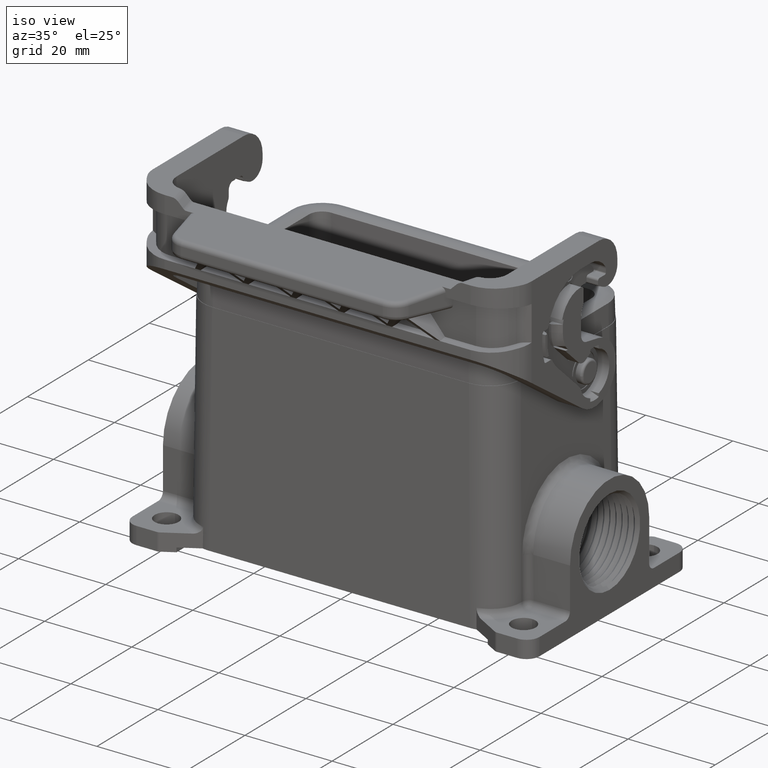
[diagram: clean part render]
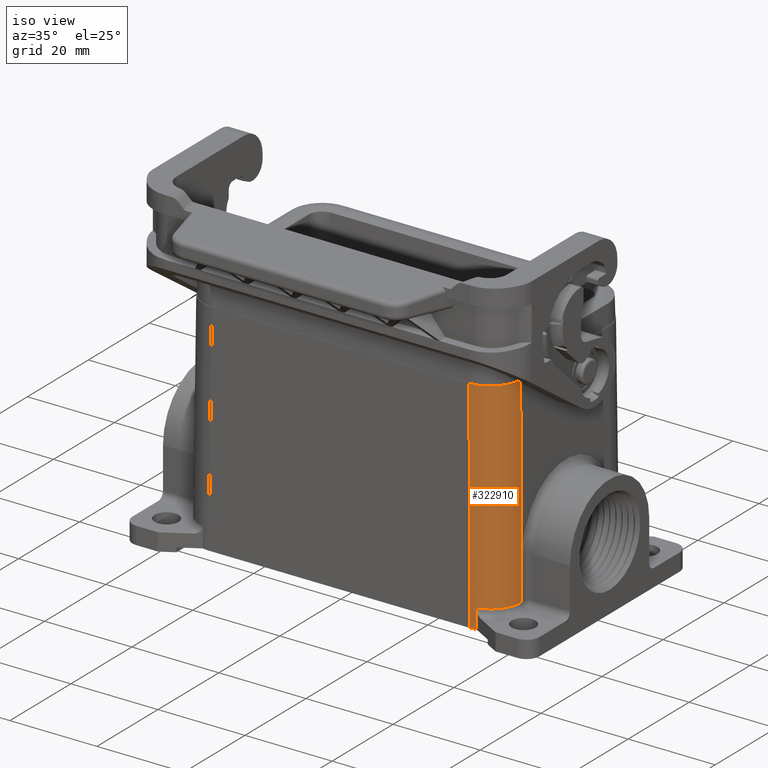
[diagram: same view with one face highlighted and labeled with its STEP entity id]
A machine part, iso view. The second image highlights one B-rep face of the part: STEP entity #322910.
In plain terms, the highlighted cylindrical surface (partial cylindrical patch) has radius 7 mm, axis along (-0.0087, 0.0087, 0.9999).
Its self-contained STEP definition (entity closure, byte-faithful):
#1130=CARTESIAN_POINT('',(56.3251965385508,76.407322,0.));
#1140=VERTEX_POINT('',#1130);
#1170=CARTESIAN_POINT('',(56.3246634512999,69.4070554512998,0.));
#1180=DIRECTION('',(0.,0.,1.));
#1190=DIRECTION('',(0.707106781186218,0.707106781186877,0.));
#1200=AXIS2_PLACEMENT_3D('',#1170,#1180,#1190);
#1210=ELLIPSE('',#1200,7.00053308725135,7.);
#1220=CARTESIAN_POINT('',(63.32493,69.4075885385508,0.));
#1230=VERTEX_POINT('',#1220);
#1240=EDGE_CURVE('',#1230,#1140,#1210,.T.);
#318680=CARTESIAN_POINT('',(56.7267466899081,76.8088721513572,
-46.0130898032476));
#318690=VERTEX_POINT('',#318680);
#318720=CARTESIAN_POINT('',(56.3246634512999,76.406788912749,
0.0610857484886176));
#318730=DIRECTION('',(-0.00872620324394422,-0.00872620324394422,
0.99992385047757));
#318740=VECTOR('',#318730,1.);
#318750=LINE('',#318720,#318740);
#318760=EDGE_CURVE('',#318690,#1140,#318750,.T.);
#319240=CARTESIAN_POINT('',(63.3243969127491,69.4070554512998,
0.0610857484886176));
#319250=DIRECTION('',(-0.00872620324394422,-0.00872620324394422,
0.99992385047757));
#319260=VECTOR('',#319250,1.);
#319270=LINE('',#319240,#319260);
#319280=CARTESIAN_POINT('',(63.7656368234333,69.8482953619841,-50.5));
#319290=VERTEX_POINT('',#319280);
#319300=EDGE_CURVE('',#319290,#1230,#319270,.T.);
#319570=CARTESIAN_POINT('',(67.82493,78.657322,-51.5));
#319580=DIRECTION('',(0.866025403784439,-0.5,0.));
#319590=DIRECTION('',(-0.5,-0.866025403784439,0.));
#319600=AXIS2_PLACEMENT_3D('',#319570,#319580,#319590);
#319610=PLANE('',#319600);
#319840=CARTESIAN_POINT('',(63.6035945287682,71.3457544880338,-50.5));
#319850=VERTEX_POINT('',#319840);
#319880=CARTESIAN_POINT('',(56.3246634512999,69.4070554512998,0.));
#319890=DIRECTION('',(-0.00872620324394422,-0.00872620324394422,
0.99992385047757));
#319900=DIRECTION('',(0.999961923064171,0.,0.00872653549837394));
#319910=AXIS2_PLACEMENT_3D('',#319880,#319890,#319900);
#319920=CYLINDRICAL_SURFACE('',#319910,7.);
#319930=CARTESIAN_POINT('',(63.5689838712298,71.285807070694,
-46.0155562559919));
#319940=CARTESIAN_POINT('',(63.5718701029853,71.290806170737,
-46.3892598440084));
#319950=CARTESIAN_POINT('',(63.5747558304727,71.2958043973619,
-46.7629634454475));
#319960=CARTESIAN_POINT('',(63.5776410549607,71.3008017527663,
-47.1366670602358));
#319970=CARTESIAN_POINT('',(63.5805262794478,71.3057991081692,
-47.5103706749077));
#319980=CARTESIAN_POINT('',(63.5834110009355,71.3107955923516,
-47.8840743029405));
#319990=CARTESIAN_POINT('',(63.5862952207121,71.3157912075449,
-48.2577779476244));
#320000=CARTESIAN_POINT('',(63.5891794404868,71.3207868227348,
-48.6314815920513));
#320010=CARTESIAN_POINT('',(63.5920631585418,71.3257815689211,
-49.0051852519892));
#320020=CARTESIAN_POINT('',(63.5949463761333,71.330775448279,
-49.3788889274008));
#320030=CARTESIAN_POINT('',(63.5978295937248,71.3357693276368,
-49.7525926028104));
#320040=CARTESIAN_POINT('',(63.6007123108538,71.3407623401702,
-50.1262962936917));
#320050=CARTESIAN_POINT('',(63.6035945287691,71.345754488038,
-50.4999999999996));
#320060=B_SPLINE_CURVE_WITH_KNOTS('',3,(#319930,#319940,#319950,#319960,
#319970,#319980,#319990,#320000,#320010,#320020,#320030,#320040,#320050)
,.UNSPECIFIED.,.F.,.F.,(4,3,3,3,4),(0.,1.12124555446671,2.24248676815513
,3.36372429063031,4.48496332868652),.UNSPECIFIED.);
#320070=SURFACE_CURVE('',#320060,(#319920,#319610),.CURVE_3D.);
#320080=CARTESIAN_POINT('',(63.5689838712297,71.2858070706938,
-46.015556255992));
#320090=VERTEX_POINT('',#320080);
#320100=EDGE_CURVE('',#320090,#319850,#320070,.T.);
#322570=ORIENTED_EDGE('',*,*,#320100,.F.);
#322580=CARTESIAN_POINT('',(56.7653702747332,69.8477622747332,-50.5));
#322590=DIRECTION('',(0.,0.,1.));
#322600=DIRECTION('',(0.707106781186218,0.707106781186877,0.));
#322610=AXIS2_PLACEMENT_3D('',#322580,#322590,#322600);
#322620=ELLIPSE('',#322610,7.00053308725135,7.);
#322630=EDGE_CURVE('',#319290,#319850,#322620,.T.);
#322640=ORIENTED_EDGE('',*,*,#322630,.T.);
#322650=ORIENTED_EDGE('',*,*,#319300,.F.);
#322660=ORIENTED_EDGE('',*,*,#1240,.F.);
#322670=ORIENTED_EDGE('',*,*,#318760,.T.);
#322680=CARTESIAN_POINT('',(63.7264695934102,69.7971009191577,
-46.0130672765201));
#322690=CARTESIAN_POINT('',(63.7270819079495,70.1498558565419,
-46.0137279663123));
#322700=CARTESIAN_POINT('',(63.7010305270622,70.5024742860732,
-46.0143385478371));
#322710=CARTESIAN_POINT('',(63.5622760348133,71.4236384300364,
-46.0158014170402));
#322720=CARTESIAN_POINT('',(63.405662987503,71.9824765840377,
-46.016553456231));
#322730=CARTESIAN_POINT('',(62.9585933961957,73.0488666967265,
-46.0177113981295));
#322740=CARTESIAN_POINT('',(62.6698593416404,73.5523111832561,
-46.0181128416415));
#322750=CARTESIAN_POINT('',(61.9751840568426,74.4766889071428,
-46.0185423156687));
#322760=CARTESIAN_POINT('',(61.5719191899099,74.8940611081277,
-46.0185686921129));
#322770=CARTESIAN_POINT('',(60.6719653897901,75.6200967966754,
-46.0182435178915));
#322780=CARTESIAN_POINT('',(60.1787436186638,75.9259633291964,
-46.0178932203102));
#322790=CARTESIAN_POINT('',(59.1283522469177,76.4094195938896,
-46.0168332232787));
#322800=CARTESIAN_POINT('',(58.5752285870459,76.585146669274,
-46.0161276059088));
#322810=CARTESIAN_POINT('',(57.6469505493541,76.7577895570488,
-46.0147147969191));
#322820=CARTESIAN_POINT('',(57.282710426874,76.7963286696311,
-46.0141058346245));
#322830=CARTESIAN_POINT('',(56.8539015481885,76.8080080697207,
-46.01332592877));
#322840=CARTESIAN_POINT('',(56.7903255820189,76.8088731887651,
-46.0132086784096));
#322850=CARTESIAN_POINT('',(56.7267466899081,76.8088721513572,
-46.0130898032476));
#322860=B_SPLINE_CURVE_WITH_KNOTS('',3,(#322680,#322690,#322700,#322710,
#322720,#322730,#322740,#322750,#322760,#322770,#322780,#322790,#322800,
#322810,#322820,#322830,#322840,#322850),.UNSPECIFIED.,.F.,.F.,(4,2,2,2,
2,2,2,2,4),(4.58159444468175,5.75387101598318,7.67172201763138,
9.58956622956359,11.5074077426626,13.4252477164201,15.34309400053,
16.5573056860587,16.7685825168029),.UNSPECIFIED.);
#322870=EDGE_CURVE('',#320090,#318690,#322860,.T.);
#322880=ORIENTED_EDGE('',*,*,#322870,.T.);
#322890=EDGE_LOOP('',(#322880,#322670,#322660,#322650,#322640,#322570));
#322900=FACE_OUTER_BOUND('',#322890,.T.);
#322910=ADVANCED_FACE('',(#322900),#319920,.T.);